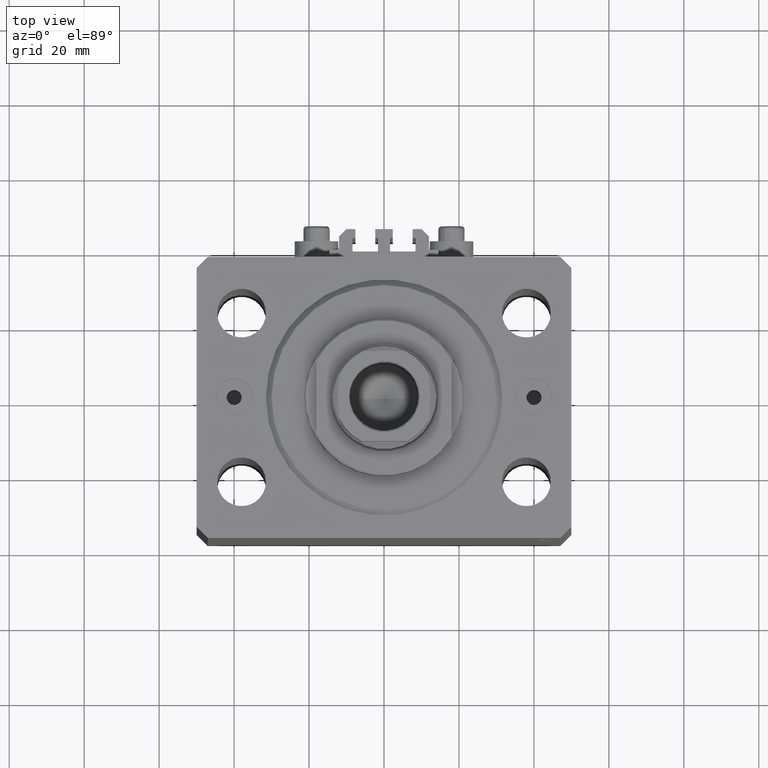
[diagram: clean part render]
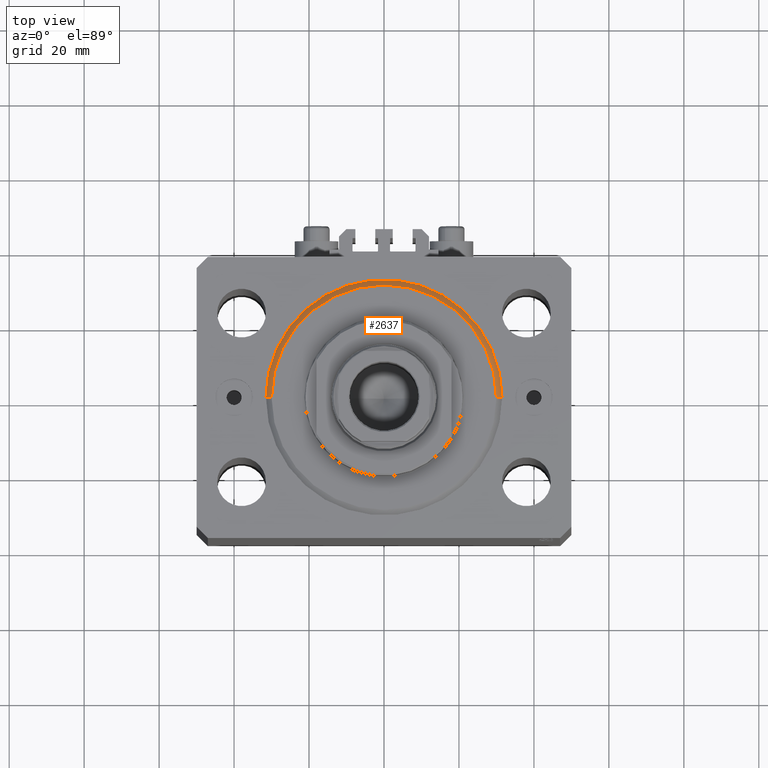
[diagram: same view with one face highlighted and labeled with its STEP entity id]
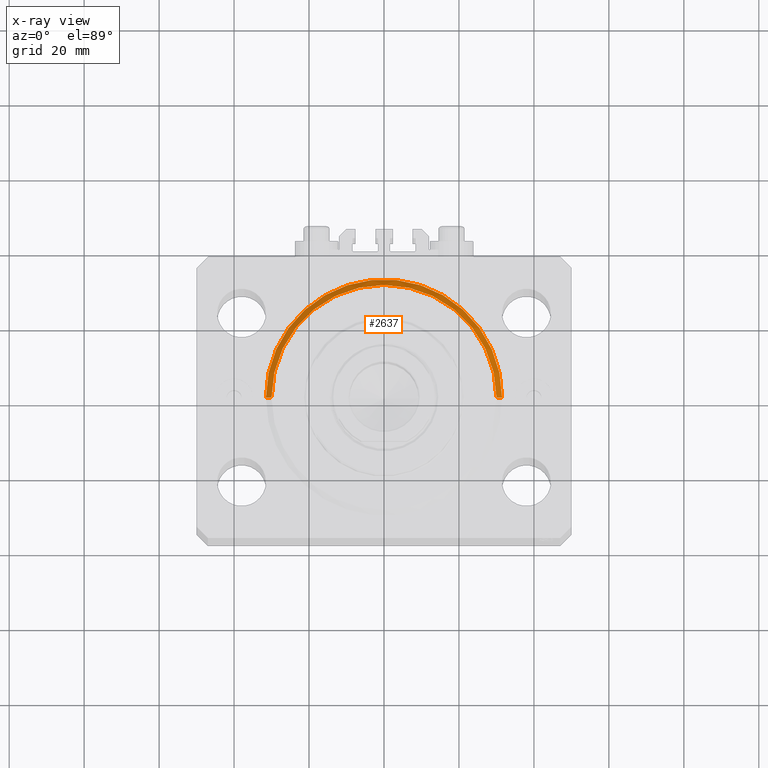
[diagram: x-ray of the same camera — body ghosted, the highlighted face saturated]
A machine part, top view. The second image highlights one B-rep face of the part: STEP entity #2637.
The next image is the same camera in x-ray: the body ghosted, the highlighted face saturated — about 0% of this face is hidden behind the body in this view.
In plain terms, the highlighted conical surface has half-angle 45 deg.
Its self-contained STEP definition (entity closure, byte-faithful):
#808 = AXIS2_PLACEMENT_3D ( 'NONE', #26994, #12663, #27455 ) ;
#2281 = EDGE_CURVE ( 'NONE', #6015, #43837, #4376, .T. ) ;
#2637 = ADVANCED_FACE ( 'NONE', ( #41773 ), #9932, .T. ) ;
#3451 = ORIENTED_EDGE ( 'NONE', *, *, #41754, .F. ) ;
#4376 = LINE ( 'NONE', #11550, #18361 ) ;
#5427 = CARTESIAN_POINT ( 'NONE',  ( -31.50000000000000000, 0.000000000000000000, 1.500000000000001332 ) ) ;
#6015 = VERTEX_POINT ( 'NONE', #11346 ) ;
#6938 = DIRECTION ( 'NONE',  ( 1.000000000000000000, 0.000000000000000000, 0.000000000000000000 ) ) ;
#9932 = CONICAL_SURFACE ( 'NONE', #808, 31.50000000000000000, 0.7853981633974506105 ) ;
#11346 = CARTESIAN_POINT ( 'NONE',  ( -29.99999999999999289, 3.765788907378110539E-15, 0.000000000000000000 ) ) ;
#11550 = CARTESIAN_POINT ( 'NONE',  ( -31.50000000000000000, 3.857637417314162689E-15, 1.500000000000001332 ) ) ;
#12453 = LINE ( 'NONE', #37042, #22011 ) ;
#12663 = DIRECTION ( 'NONE',  ( -0.000000000000000000, -0.000000000000000000, 1.000000000000000000 ) ) ;
#14568 = ORIENTED_EDGE ( 'NONE', *, *, #30970, .F. ) ;
#17168 = ORIENTED_EDGE ( 'NONE', *, *, #2281, .T. ) ;
#18361 = VECTOR ( 'NONE', #18934, 1000.000000000000000 ) ;
#18934 = DIRECTION ( 'NONE',  ( -0.7071067811865491270, 8.659560562354952580E-17, 0.7071067811865459074 ) ) ;
#19198 = CIRCLE ( 'NONE', #45871, 29.99999999999999289 ) ;
#20695 = VERTEX_POINT ( 'NONE', #45386 ) ;
#20978 = EDGE_LOOP ( 'NONE', ( #3451, #17168, #26582, #14568 ) ) ;
#22011 = VECTOR ( 'NONE', #27014, 1000.000000000000000 ) ;
#22125 = DIRECTION ( 'NONE',  ( 1.000000000000000000, 0.000000000000000000, 0.000000000000000000 ) ) ;
#25724 = CARTESIAN_POINT ( 'NONE',  ( 0.000000000000000000, 0.000000000000000000, 0.000000000000000000 ) ) ;
#26582 = ORIENTED_EDGE ( 'NONE', *, *, #36614, .F. ) ;
#26994 = CARTESIAN_POINT ( 'NONE',  ( 0.000000000000000000, 0.000000000000000000, 1.500000000000001332 ) ) ;
#27014 = DIRECTION ( 'NONE',  ( 0.7071067811865491270, 0.000000000000000000, 0.7071067811865459074 ) ) ;
#27455 = DIRECTION ( 'NONE',  ( 1.000000000000000000, 0.000000000000000000, 0.000000000000000000 ) ) ;
#30970 = EDGE_CURVE ( 'NONE', #20695, #44286, #12453, .T. ) ;
#36614 = EDGE_CURVE ( 'NONE', #44286, #43837, #39630, .T. ) ;
#37042 = CARTESIAN_POINT ( 'NONE',  ( 31.50000000000000000, 0.000000000000000000, 1.500000000000001332 ) ) ;
#39626 = CARTESIAN_POINT ( 'NONE',  ( 0.000000000000000000, 0.000000000000000000, 1.500000000000001332 ) ) ;
#39630 = CIRCLE ( 'NONE', #40396, 31.50000000000000000 ) ;
#40396 = AXIS2_PLACEMENT_3D ( 'NONE', #39626, #46564, #6938 ) ;
#40985 = DIRECTION ( 'NONE',  ( -0.000000000000000000, -0.000000000000000000, -1.000000000000000000 ) ) ;
#41754 = EDGE_CURVE ( 'NONE', #6015, #20695, #19198, .T. ) ;
#41773 = FACE_OUTER_BOUND ( 'NONE', #20978, .T. ) ;
#43837 = VERTEX_POINT ( 'NONE', #5427 ) ;
#44286 = VERTEX_POINT ( 'NONE', #44706 ) ;
#44706 = CARTESIAN_POINT ( 'NONE',  ( 31.50000000000000000, 3.857637417314162689E-15, 1.500000000000001332 ) ) ;
#45386 = CARTESIAN_POINT ( 'NONE',  ( 29.99999999999999289, 0.000000000000000000, 0.000000000000000000 ) ) ;
#45871 = AXIS2_PLACEMENT_3D ( 'NONE', #25724, #40985, #22125 ) ;
#46564 = DIRECTION ( 'NONE',  ( -0.000000000000000000, -0.000000000000000000, 1.000000000000000000 ) ) ;